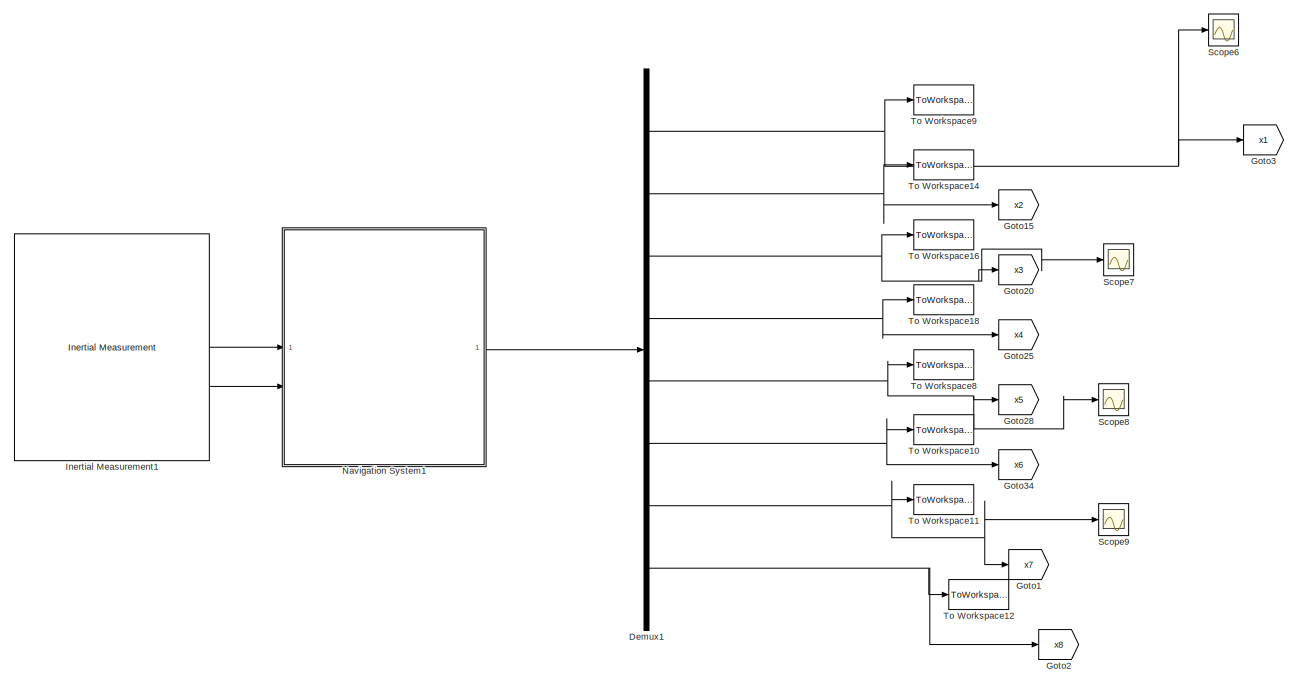
[diagram: root canvas - part 1/9, top left region]
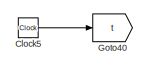
[diagram: root canvas - part 2/9, top center region]
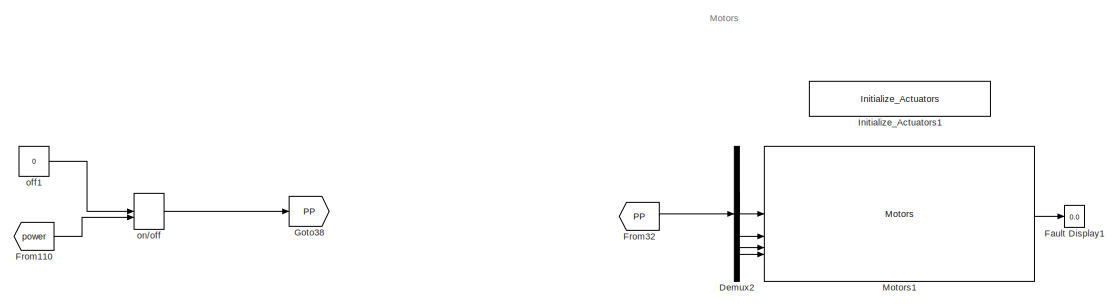
[diagram: root canvas - part 3/9, top right region]
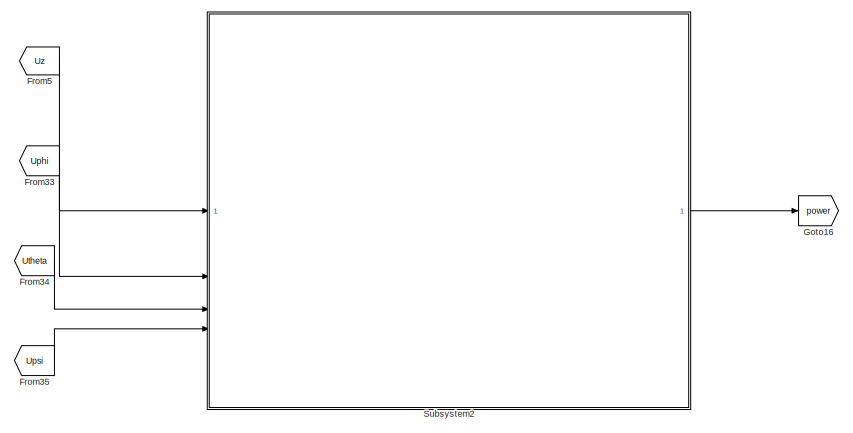
[diagram: root canvas - part 4/9, top center region]
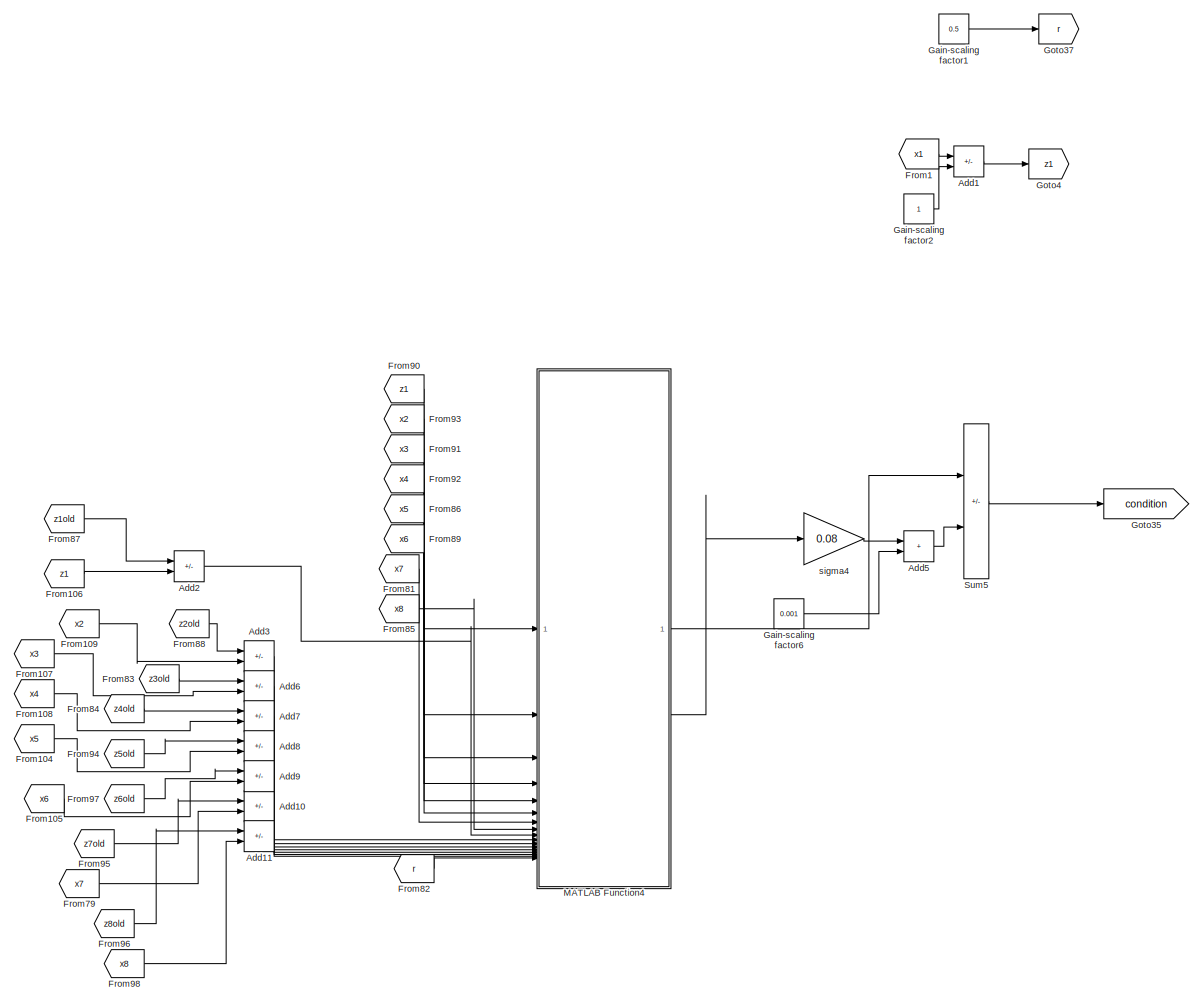
[diagram: root canvas - part 5/9, middle left region]
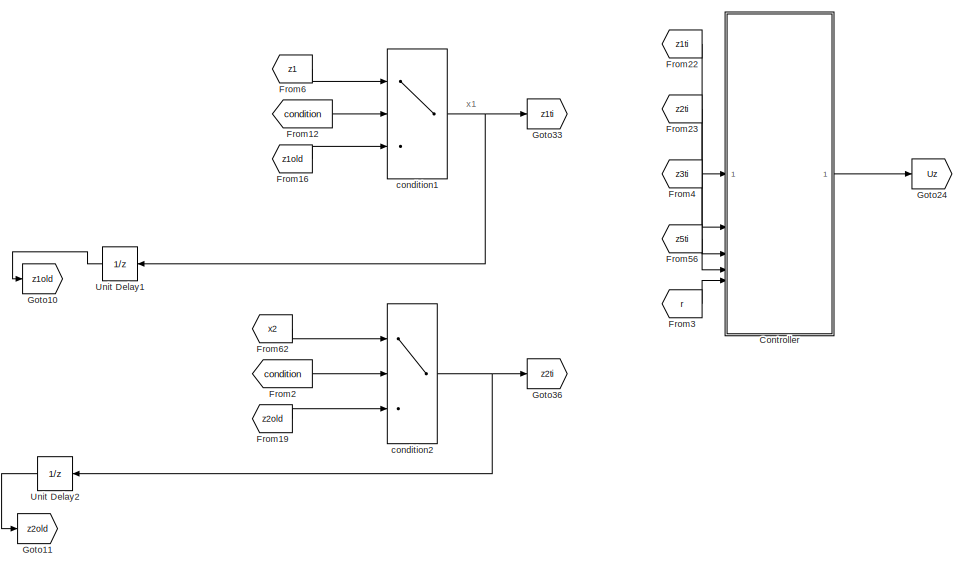
[diagram: root canvas - part 6/9, central region]
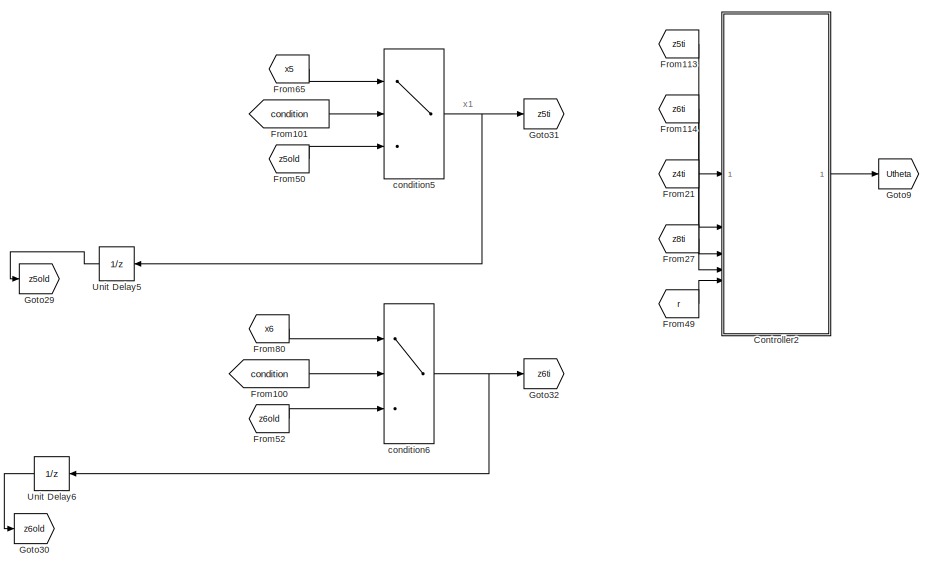
[diagram: root canvas - part 7/9, middle right region]
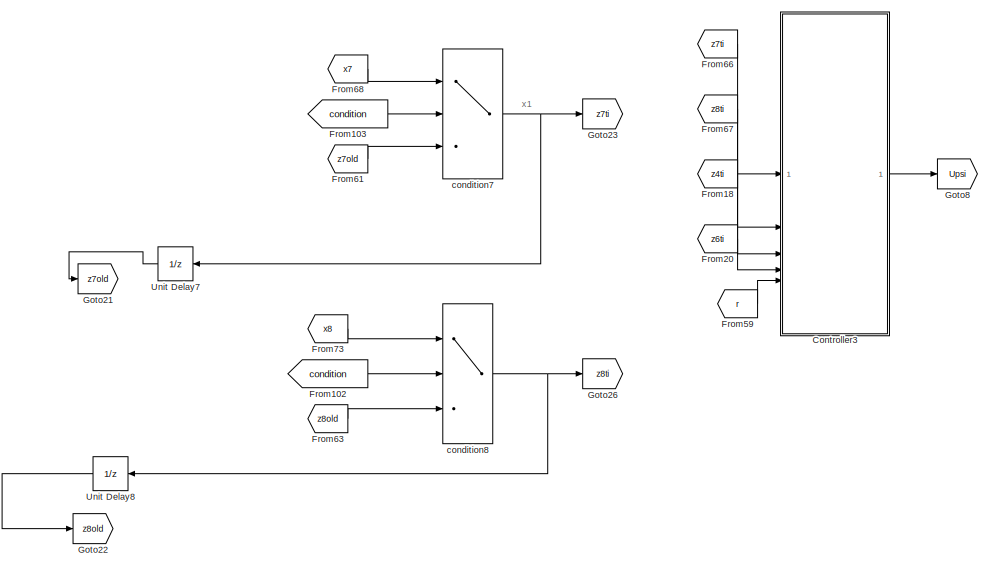
[diagram: root canvas - part 8/9, bottom right region]
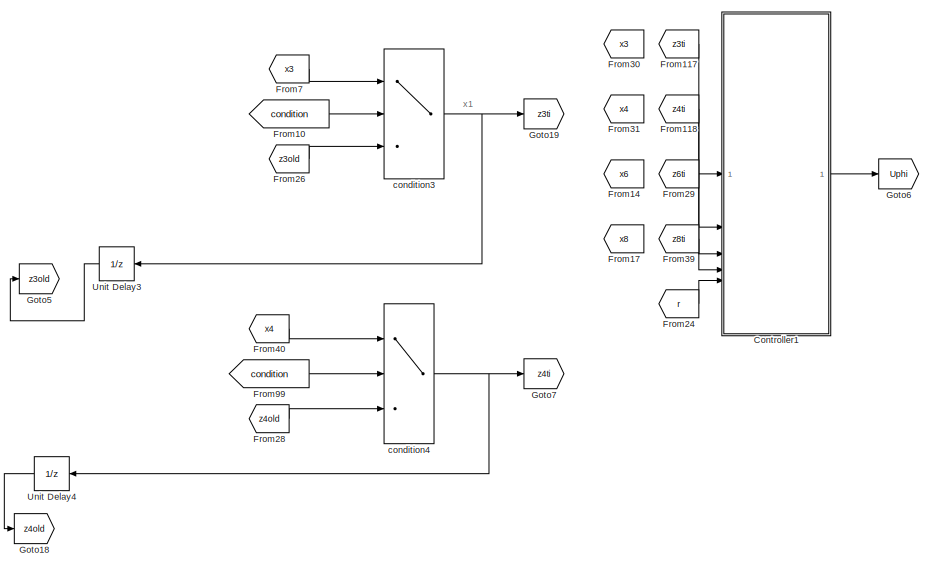
[diagram: root canvas - part 9/9, bottom center region]
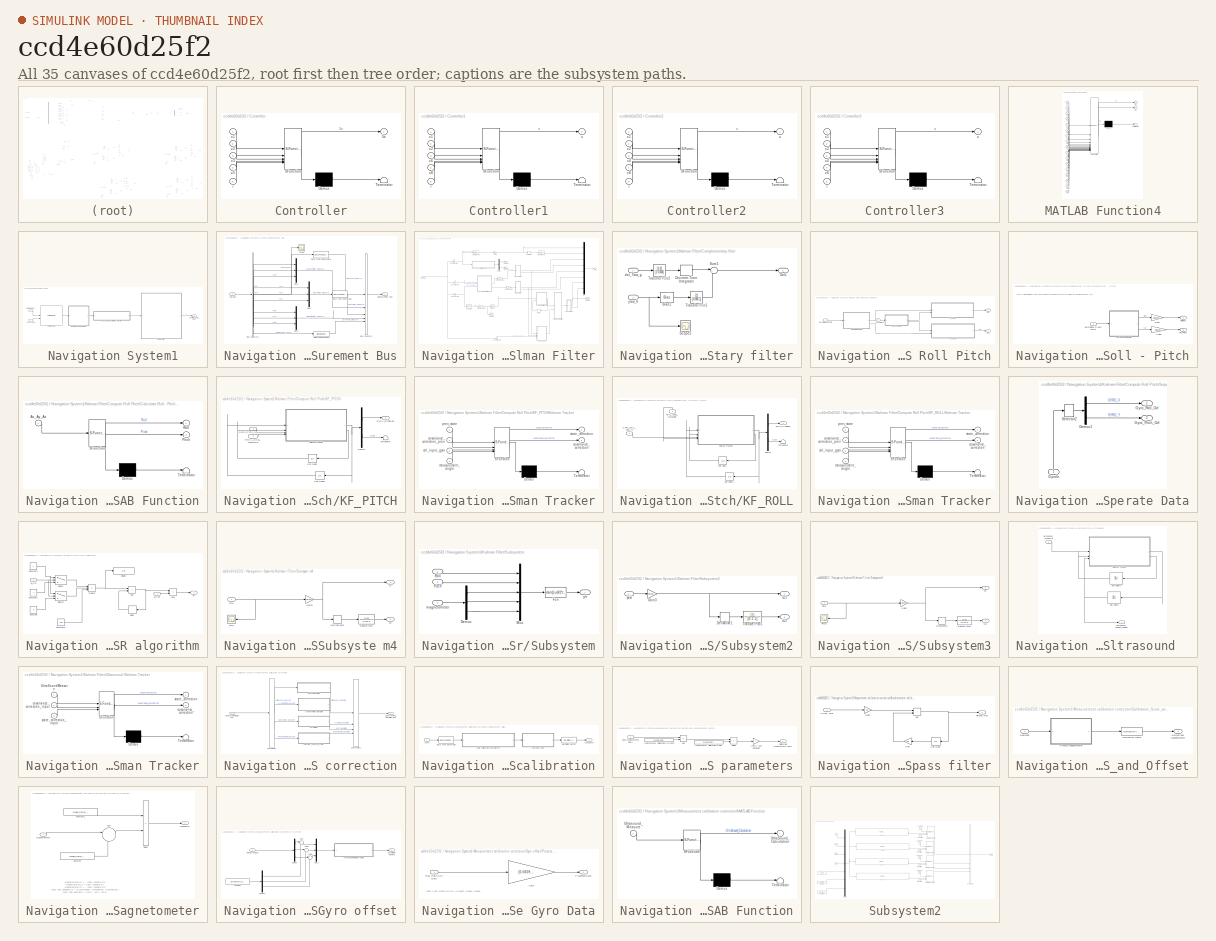
[diagram: thumbnail index - all 35 canvases of the model, root first then tree order]
MODEL slx_ccd4e60d25f2
KIND model
BLOCK [Sum] Add1
  IconShape = rectangular
  Inputs = +-
BLOCK [Sum] Add10
  IconShape = rectangular
  Inputs = +-
BLOCK [Sum] Add11
  IconShape = rectangular
  Inputs = +-
BLOCK [Sum] Add2
  IconShape = rectangular
  Inputs = +-
BLOCK [Sum] Add3
  IconShape = rectangular
  Inputs = +-
BLOCK [Sum] Add5
  IconShape = rectangular
BLOCK [Sum] Add6
  IconShape = rectangular
  Inputs = +-
BLOCK [Sum] Add7
  IconShape = rectangular
  Inputs = +-
BLOCK [Sum] Add8
  IconShape = rectangular
  Inputs = +-
BLOCK [Sum] Add9
  IconShape = rectangular
  Inputs = +-
BLOCK [Clock] Clock5
BLOCK [SubSystem] Controller
  ErrorFcn = Stateflow.Translate.translate
  PermitHierarchicalResolution = ExplicitOnly
  SFBlockType = MATLAB Function
  TreatAsAtomicUnit = on
BLOCK [Demux] Controller/ Demux 
  Outputs = 1
BLOCK [S-Function] Controller/ SFunction 
  EnableBusSupport = off
  FunctionName = sf_sfun
  PortCounts = [5 2]
  SFcnIsStateOwnerBlock = off
  SFunctionDeploymentMode = off
  Tag = Stateflow S-Function 14
BLOCK [Terminator] Controller/ Terminator 
BLOCK [Outport] Controller/Uz
BLOCK [Inport] Controller/r
  Port = 5
BLOCK [Inport] Controller/x1
BLOCK [Inport] Controller/x2
  Port = 2
BLOCK [Inport] Controller/x3
  Port = 3
BLOCK [Inport] Controller/x5
  Port = 4
BLOCK [SubSystem] Controller1
  ErrorFcn = Stateflow.Translate.translate
  PermitHierarchicalResolution = ExplicitOnly
  SFBlockType = MATLAB Function
  TreatAsAtomicUnit = on
BLOCK [Demux] Controller1/ Demux 
  Outputs = 1
BLOCK [S-Function] Controller1/ SFunction 
  EnableBusSupport = off
  FunctionName = sf_sfun
  PortCounts = [5 2]
  SFcnIsStateOwnerBlock = off
  SFunctionDeploymentMode = off
  Tag = Stateflow S-Function 1
BLOCK [Terminator] Controller1/ Terminator 
BLOCK [Inport] Controller1/r
  Port = 5
BLOCK [Outport] Controller1/u
BLOCK [Inport] Controller1/x1
BLOCK [Inport] Controller1/x2
  Port = 2
BLOCK [Inport] Controller1/x6
  Port = 3
BLOCK [Inport] Controller1/x8
  Port = 4
BLOCK [SubSystem] Controller2
  ErrorFcn = Stateflow.Translate.translate
  PermitHierarchicalResolution = ExplicitOnly
  SFBlockType = MATLAB Function
  TreatAsAtomicUnit = on
BLOCK [Demux] Controller2/ Demux 
  Outputs = 1
BLOCK [S-Function] Controller2/ SFunction 
  EnableBusSupport = off
  FunctionName = sf_sfun
  PortCounts = [5 2]
  SFcnIsStateOwnerBlock = off
  SFunctionDeploymentMode = off
  Tag = Stateflow S-Function 2
BLOCK [Terminator] Controller2/ Terminator 
BLOCK [Inport] Controller2/r
  Port = 5
BLOCK [Outport] Controller2/u
BLOCK [Inport] Controller2/x1
BLOCK [Inport] Controller2/x2
  Port = 2
BLOCK [Inport] Controller2/x4
  Port = 3
BLOCK [Inport] Controller2/x8
  Port = 4
BLOCK [SubSystem] Controller3
  ErrorFcn = Stateflow.Translate.translate
  PermitHierarchicalResolution = ExplicitOnly
  SFBlockType = MATLAB Function
  TreatAsAtomicUnit = on
BLOCK [Demux] Controller3/ Demux 
  Outputs = 1
BLOCK [S-Function] Controller3/ SFunction 
  EnableBusSupport = off
  FunctionName = sf_sfun
  PortCounts = [5 2]
  SFcnIsStateOwnerBlock = off
  SFunctionDeploymentMode = off
  Tag = Stateflow S-Function 8
BLOCK [Terminator] Controller3/ Terminator 
BLOCK [Inport] Controller3/r
  Port = 5
BLOCK [Outport] Controller3/u
BLOCK [Inport] Controller3/x1
BLOCK [Inport] Controller3/x2
  Port = 2
BLOCK [Inport] Controller3/x4
  Port = 3
BLOCK [Inport] Controller3/x6
  Port = 4
BLOCK [Demux] Demux1
  Outputs = 8
BLOCK [Demux] Demux2
BLOCK [Display] Fault Display1
  Decimation = 1
BLOCK [From] From1
  GotoTag = x1
BLOCK [From] From10
  GotoTag = condition
BLOCK [From] From100
  GotoTag = condition
BLOCK [From] From101
  GotoTag = condition
BLOCK [From] From102
  GotoTag = condition
BLOCK [From] From103
  GotoTag = condition
BLOCK [From] From104
  GotoTag = x5
BLOCK [From] From105
  GotoTag = x6
BLOCK [From] From106
  GotoTag = z1
BLOCK [From] From107
  GotoTag = x3
BLOCK [From] From108
  GotoTag = x4
BLOCK [From] From109
  GotoTag = x2
BLOCK [From] From110
  GotoTag = power
BLOCK [From] From113
  GotoTag = z5ti
BLOCK [From] From114
  GotoTag = z6ti
BLOCK [From] From117
  GotoTag = z3ti
BLOCK [From] From118
  GotoTag = z4ti
BLOCK [From] From12
  GotoTag = condition
BLOCK [From] From14
  GotoTag = x6
BLOCK [From] From16
  GotoTag = z1old
BLOCK [From] From17
  GotoTag = x8
BLOCK [From] From18
  GotoTag = z4ti
BLOCK [From] From19
  GotoTag = z2old
BLOCK [From] From2
  GotoTag = condition
BLOCK [From] From20
  GotoTag = z6ti
BLOCK [From] From21
  GotoTag = z4ti
BLOCK [From] From22
  GotoTag = z1ti
BLOCK [From] From23
  GotoTag = z2ti
BLOCK [From] From24
  GotoTag = r
BLOCK [From] From26
  GotoTag = z3old
BLOCK [From] From27
  GotoTag = z8ti
BLOCK [From] From28
  GotoTag = z4old
BLOCK [From] From29
  GotoTag = z6ti
BLOCK [From] From3
  GotoTag = r
BLOCK [From] From30
  GotoTag = x3
BLOCK [From] From31
  GotoTag = x4
BLOCK [From] From32
  GotoTag = PP
BLOCK [From] From33
  GotoTag = Uphi
BLOCK [From] From34
  GotoTag = Utheta
BLOCK [From] From35
  GotoTag = Upsi
BLOCK [From] From39
  GotoTag = z8ti
BLOCK [From] From4
  GotoTag = z3ti
BLOCK [From] From40
  GotoTag = x4
BLOCK [From] From49
  GotoTag = r
BLOCK [From] From5
  GotoTag = Uz
BLOCK [From] From50
  GotoTag = z5old
BLOCK [From] From52
  GotoTag = z6old
BLOCK [From] From56
  GotoTag = z5ti
BLOCK [From] From59
  GotoTag = r
BLOCK [From] From6
  GotoTag = z1
BLOCK [From] From61
  GotoTag = z7old
BLOCK [From] From62
  GotoTag = x2
BLOCK [From] From63
  GotoTag = z8old
BLOCK [From] From65
  GotoTag = x5
BLOCK [From] From66
  GotoTag = z7ti
BLOCK [From] From67
  GotoTag = z8ti
BLOCK [From] From68
  GotoTag = x7
BLOCK [From] From7
  GotoTag = x3
BLOCK [From] From73
  GotoTag = x8
BLOCK [From] From79
  GotoTag = x7
BLOCK [From] From80
  GotoTag = x6
BLOCK [From] From81
  GotoTag = x7
BLOCK [From] From82
  GotoTag = r
BLOCK [From] From83
  GotoTag = z3old
BLOCK [From] From84
  GotoTag = z4old
BLOCK [From] From85
  GotoTag = x8
BLOCK [From] From86
  GotoTag = x5
BLOCK [From] From87
  GotoTag = z1old
BLOCK [From] From88
  GotoTag = z2old
BLOCK [From] From89
  GotoTag = x6
BLOCK [From] From90
  GotoTag = z1
BLOCK [From] From91
  GotoTag = x3
BLOCK [From] From92
  GotoTag = x4
BLOCK [From] From93
  GotoTag = x2
BLOCK [From] From94
  GotoTag = z5old
BLOCK [From] From95
  GotoTag = z7old
BLOCK [From] From96
  GotoTag = z8old
  NameLocation = top
BLOCK [From] From97
  GotoTag = z6old
BLOCK [From] From98
  GotoTag = x8
BLOCK [From] From99
  GotoTag = condition
BLOCK [Constant] Gain-scaling factor1
  Value = 0.5
BLOCK [Constant] Gain-scaling factor2
BLOCK [Constant] Gain-scaling factor6
  Value = 0.001
BLOCK [Goto] Goto1
  GotoTag = x7
BLOCK [Goto] Goto10
  GotoTag = z1old
BLOCK [Goto] Goto11
  GotoTag = z2old
BLOCK [Goto] Goto15
  GotoTag = x2
BLOCK [Goto] Goto16
  GotoTag = power
BLOCK [Goto] Goto18
  GotoTag = z4old
BLOCK [Goto] Goto19
  GotoTag = z3ti
BLOCK [Goto] Goto2
  GotoTag = x8
BLOCK [Goto] Goto20
  GotoTag = x3
BLOCK [Goto] Goto21
  GotoTag = z7old
BLOCK [Goto] Goto22
  GotoTag = z8old
BLOCK [Goto] Goto23
  GotoTag = z7ti
BLOCK [Goto] Goto24
  GotoTag = Uz
BLOCK [Goto] Goto25
  GotoTag = x4
BLOCK [Goto] Goto26
  GotoTag = z8ti
BLOCK [Goto] Goto28
  GotoTag = x5
BLOCK [Goto] Goto29
  GotoTag = z5old
BLOCK [Goto] Goto3
  GotoTag = x1
BLOCK [Goto] Goto30
  GotoTag = z6old
BLOCK [Goto] Goto31
  GotoTag = z5ti
BLOCK [Goto] Goto32
  GotoTag = z6ti
BLOCK [Goto] Goto33
  GotoTag = z1ti
BLOCK [Goto] Goto34
  GotoTag = x6
BLOCK [Goto] Goto35
  GotoTag = condition
BLOCK [Goto] Goto36
  GotoTag = z2ti
BLOCK [Goto] Goto37
  GotoTag = r
BLOCK [Goto] Goto38
  GotoTag = PP
BLOCK [Goto] Goto4
  GotoTag = z1
BLOCK [Goto] Goto40
  GotoTag = t
BLOCK [Goto] Goto5
  GotoTag = z3old
BLOCK [Goto] Goto6
  GotoTag = Uphi
BLOCK [Goto] Goto7
  GotoTag = z4ti
BLOCK [Goto] Goto8
  GotoTag = Upsi
BLOCK [Goto] Goto9
  GotoTag = Utheta
BLOCK [Reference] Inertial Measurement1  REF=AR_Drone_Sensors/Inertial Measurement
  SourceBlock = AR_Drone_Sensors/Inertial Measurement
BLOCK [Reference] Initialize_Actuators1  REF=AR_Drone_Actuators/Initialize_Actuators
  SourceBlock = AR_Drone_Actuators/Initialize_Actuators
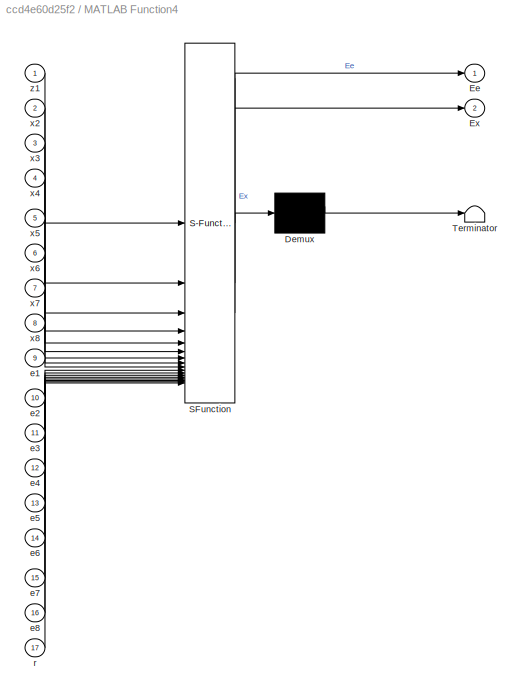
BLOCK [SubSystem] MATLAB Function4
  ErrorFcn = Stateflow.Translate.translate
  PermitHierarchicalResolution = ExplicitOnly
  SFBlockType = MATLAB Function
  TreatAsAtomicUnit = on
BLOCK [Demux] MATLAB Function4/ Demux 
  Outputs = 1
BLOCK [S-Function] MATLAB Function4/ SFunction 
  EnableBusSupport = off
  FunctionName = sf_sfun
  PortCounts = [17 3]
  SFcnIsStateOwnerBlock = off
  SFunctionDeploymentMode = off
  Tag = Stateflow S-Function 9
BLOCK [Terminator] MATLAB Function4/ Terminator 
BLOCK [Outport] MATLAB Function4/Ee
BLOCK [Outport] MATLAB Function4/Ex
  Port = 2
BLOCK [Inport] MATLAB Function4/e1
  Port = 9
BLOCK [Inport] MATLAB Function4/e2
  Port = 10
BLOCK [Inport] MATLAB Function4/e3
  Port = 11
BLOCK [Inport] MATLAB Function4/e4
  Port = 12
BLOCK [Inport] MATLAB Function4/e5
  Port = 13
BLOCK [Inport] MATLAB Function4/e6
  Port = 14
BLOCK [Inport] MATLAB Function4/e7
  Port = 15
BLOCK [Inport] MATLAB Function4/e8
  Port = 16
BLOCK [Inport] MATLAB Function4/r
  Port = 17
BLOCK [Inport] MATLAB Function4/x2
  Port = 2
BLOCK [Inport] MATLAB Function4/x3
  Port = 3
BLOCK [Inport] MATLAB Function4/x4
  Port = 4
BLOCK [Inport] MATLAB Function4/x5
  Port = 5
BLOCK [Inport] MATLAB Function4/x6
  Port = 6
BLOCK [Inport] MATLAB Function4/x7
  Port = 7
BLOCK [Inport] MATLAB Function4/x8
  Port = 8
BLOCK [Inport] MATLAB Function4/z1
BLOCK [Reference] Motors1  REF=AR_Drone_Actuators/Motors
  SourceBlock = AR_Drone_Actuators/Motors
BLOCK [SubSystem] Navigation System1
  AncestorBlock = AR_Drone_Positioning/Navigation System
BLOCK [Inport] Navigation System1/CheckSum
  Port = 2
BLOCK [Outport] Navigation System1/Controller_Data_Bus
BLOCK [SubSystem] Navigation System1/Create Measurement Bus
BLOCK [BusCreator] Navigation System1/Create Measurement Bus/Bus Creator2
  DisplayOption = bar
  InheritFromInputs = on
  Inputs = 5
BLOCK [BusSelector] Navigation System1/Create Measurement Bus/Bus Selector1
  OutputSignals = ultrasound,ax,ay,az,vx,vy,vz,mx,my,mz,temperature_gyro
BLOCK [DataTypeConversion] Navigation System1/Create Measurement Bus/Data Type Conversion
  OutDataTypeStr = double
  RndMeth = Floor
  SaturateOnIntegerOverflow = off
BLOCK [DataTypeConversion] Navigation System1/Create Measurement Bus/Data Type Conversion1
  OutDataTypeStr = double
  RndMeth = Floor
  SaturateOnIntegerOverflow = off
BLOCK [Inport] Navigation System1/Create Measurement Bus/IMU Bus
BLOCK [Outport] Navigation System1/Create Measurement Bus/Measurement Bus
BLOCK [Mux] Navigation System1/Create Measurement Bus/Mux1
  DisplayOption = bar
  Inputs = 3
BLOCK [Mux] Navigation System1/Create Measurement Bus/Mux2
  DisplayOption = bar
  Inputs = 3
BLOCK [Mux] Navigation System1/Create Measurement Bus/Mux3
  DisplayOption = bar
  Inputs = 3
BLOCK [Scope] Navigation System1/Create Measurement Bus/Scope
  Floating = off
  NumInputPorts = 1
  ScopeSpecificationString = Simulink.scopes.TimeScopeBlockCfg('CurrentConfiguration', extmgr.ConfigurationSet(extmgr.Configuration('Core','General UI',true),extmgr.Configuration('Core','Source UI',true),extmgr.Configuration('Sources','WiredSimulink',true,'DataLoggingVariableName','ScopeData3'),extmgr.Configuration('Visuals','Time Domain',true,'SerializedDisplays',{struct('MinYLimReal','-5320.75','MaxYLimReal','47886.75','YLa...<+1437ch>
BLOCK [SignalSpecification] Navigation System1/Create Measurement Bus/Signal Specification1
BLOCK [Inport] Navigation System1/IMU Data Bus
  OutDataTypeStr = Bus: IMU_Packets
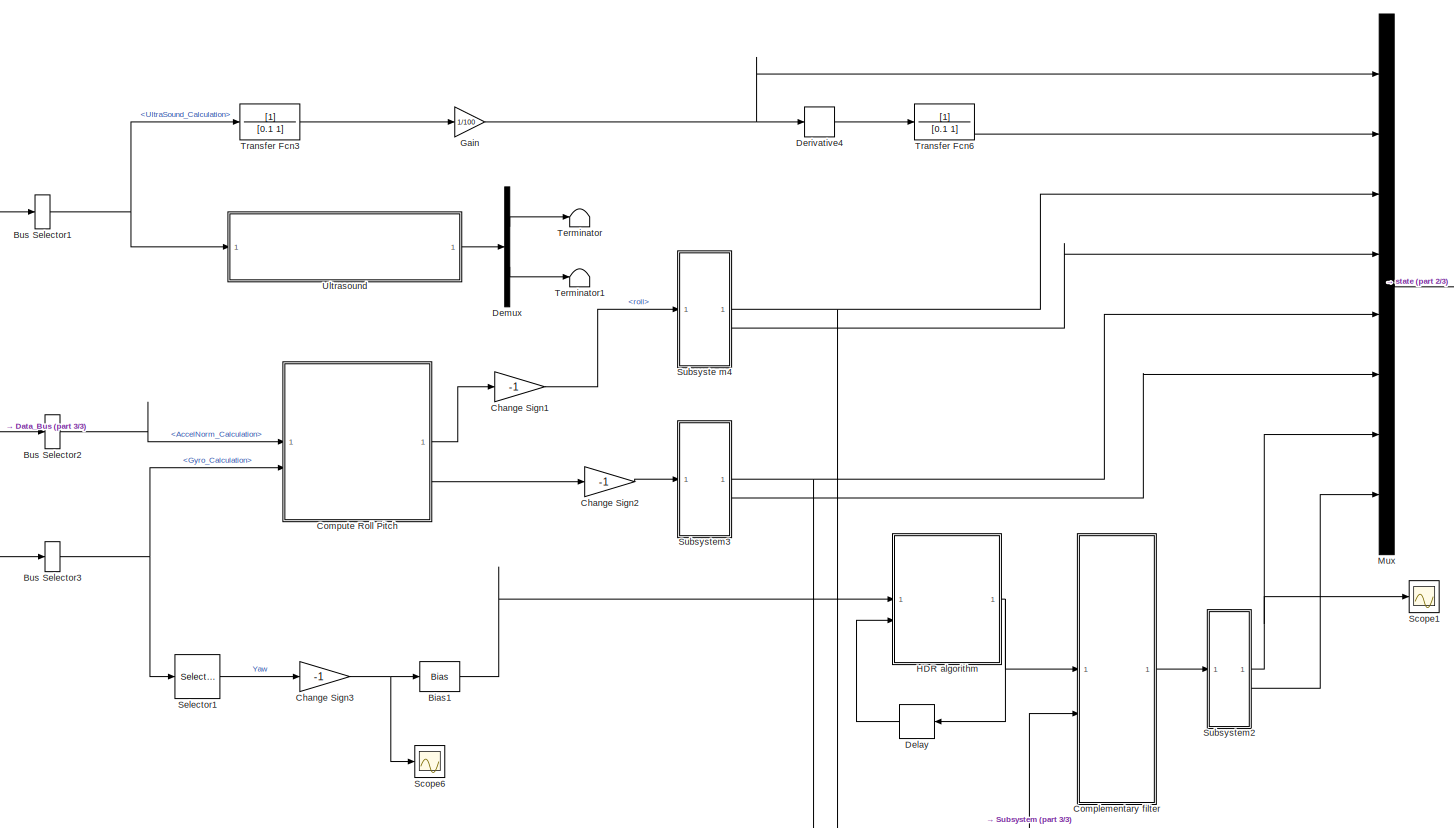
[diagram: Navigation System1/Kalman Filter - part 1/3, most of the canvas]
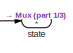
[diagram: Navigation System1/Kalman Filter - part 2/3, top right region]
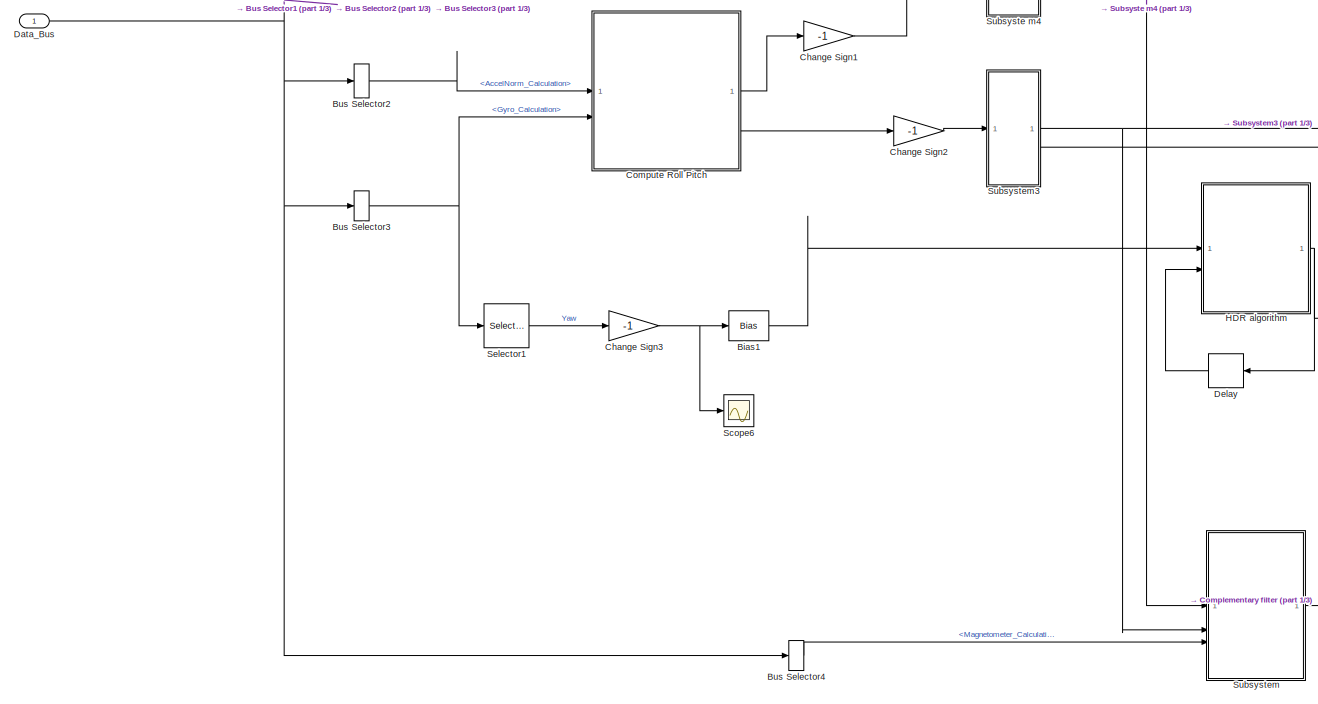
[diagram: Navigation System1/Kalman Filter - part 3/3, bottom center region]
BLOCK [SubSystem] Navigation System1/Kalman Filter
BLOCK [Bias] Navigation System1/Kalman Filter/Bias1
  Bias = -1.25
  SaturateOnIntegerOverflow = off
BLOCK [BusSelector] Navigation System1/Kalman Filter/Bus Selector1
  OutputSignals = UltraSound_Calculation
BLOCK [BusSelector] Navigation System1/Kalman Filter/Bus Selector2
  OutputSignals = AccelNorm_Calculation
BLOCK [BusSelector] Navigation System1/Kalman Filter/Bus Selector3
  OutputSignals = Gyro_Calculation
BLOCK [BusSelector] Navigation System1/Kalman Filter/Bus Selector4
  OutputSignals = Magnetometer_Calculation
BLOCK [Gain] Navigation System1/Kalman Filter/Change Sign1
  Gain = -1
BLOCK [Gain] Navigation System1/Kalman Filter/Change Sign2
  Gain = -1
BLOCK [Gain] Navigation System1/Kalman Filter/Change Sign3
  Gain = -1
BLOCK [SubSystem] Navigation System1/Kalman Filter/Complementary filter
BLOCK [Bias] Navigation System1/Kalman Filter/Complementary filter/Bias1
  Bias = -0.14
  SaturateOnIntegerOverflow = off
BLOCK [DiscreteIntegrator] Navigation System1/Kalman Filter/Complementary filter/Discrete-Time Integrator
  ICPrevOutput = DiscIntNeverNeededParam
  ICPrevScaledInput = DiscIntNeverNeededParam
  InitialConditionSetting = Auto
  SampleTime = 0.0025
BLOCK [Outport] Navigation System1/Kalman Filter/Complementary filter/Out1
BLOCK [Scope] Navigation System1/Kalman Filter/Complementary filter/Scope2
  Floating = off
  NameLocation = top
  NumInputPorts = 1
  ScopeSpecificationString = Simulink.scopes.TimeScopeBlockCfg('CurrentConfiguration', extmgr.ConfigurationSet(extmgr.Configuration('Core','General UI',true),extmgr.Configuration('Core','Source UI',true),extmgr.Configuration('Sources','WiredSimulink',true,'DataLoggingVariableName','ScopeData3'),extmgr.Configuration('Visuals','Time Domain',true,'SerializedDisplays',{struct('MinYLimReal','0.1390836658272308','MaxYLimReal','0.13...<+1554ch>
BLOCK [Sum] Navigation System1/Kalman Filter/Complementary filter/Sum1
  Inputs = |++
BLOCK [TransferFcn] Navigation System1/Kalman Filter/Complementary filter/Transfer Fcn1
  Denominator = [0.005 1]
BLOCK [TransferFcn] Navigation System1/Kalman Filter/Complementary filter/Transfer Fcn2
  Denominator = [1 0.005]
  Numerator = [1 0]
BLOCK [Inport] Navigation System1/Kalman Filter/Complementary filter/dot_Yaw_g
BLOCK [Inport] Navigation System1/Kalman Filter/Complementary filter/yaw_h
  Port = 2
BLOCK [SubSystem] Navigation System1/Kalman Filter/Compute Roll Pitch
BLOCK [SubSystem] Navigation System1/Kalman Filter/Compute Roll Pitch/Calculate Roll - Pitch
BLOCK [Gain] Navigation System1/Kalman Filter/Compute Roll Pitch/Calculate Roll - Pitch/Gain4
  Gain = 180/pi
BLOCK [Gain] Navigation System1/Kalman Filter/Compute Roll Pitch/Calculate Roll - Pitch/Gain5
  Gain = -180/pi
BLOCK [SubSystem] Navigation System1/Kalman Filter/Compute Roll Pitch/Calculate Roll - Pitch/MATLAB Function
  ErrorFcn = Stateflow.Translate.translate
  PermitHierarchicalResolution = ExplicitOnly
  SFBlockType = MATLAB Function
  TreatAsAtomicUnit = on
BLOCK [Demux] Navigation System1/Kalman Filter/Compute Roll Pitch/Calculate Roll - Pitch/MATLAB Function/ Demux 
  Outputs = 1
BLOCK [S-Function] Navigation System1/Kalman Filter/Compute Roll Pitch/Calculate Roll - Pitch/MATLAB Function/ SFunction 
  EnableBusSupport = off
  FunctionName = sf_sfun
  PortCounts = [1 3]
  SFcnIsStateOwnerBlock = off
  SFunctionDeploymentMode = off
  Tag = Stateflow S-Function 3
BLOCK [Terminator] Navigation System1/Kalman Filter/Compute Roll Pitch/Calculate Roll - Pitch/MATLAB Function/ Terminator 
BLOCK [Inport] Navigation System1/Kalman Filter/Compute Roll Pitch/Calculate Roll - Pitch/MATLAB Function/Ax_Ay_Az
BLOCK [Outport] Navigation System1/Kalman Filter/Compute Roll Pitch/Calculate Roll - Pitch/MATLAB Function/Pitch
  Port = 2
BLOCK [Outport] Navigation System1/Kalman Filter/Compute Roll Pitch/Calculate Roll - Pitch/MATLAB Function/Roll
BLOCK [Inport] Navigation System1/Kalman Filter/Compute Roll Pitch/Calculate Roll - Pitch/Normalized Gravity Vector
BLOCK [Outport] Navigation System1/Kalman Filter/Compute Roll Pitch/Calculate Roll - Pitch/PitchRaw
  Port = 2
BLOCK [Outport] Navigation System1/Kalman Filter/Compute Roll Pitch/Calculate Roll - Pitch/RollRaw
BLOCK [Inport] Navigation System1/Kalman Filter/Compute Roll Pitch/Gyro input
  Port = 2
BLOCK [SubSystem] Navigation System1/Kalman Filter/Compute Roll Pitch/KF_PITCH
BLOCK [Demux] Navigation System1/Kalman Filter/Compute Roll Pitch/KF_PITCH/Demux
  Outputs = 2
BLOCK [Inport] Navigation System1/Kalman Filter/Compute Roll Pitch/KF_PITCH/GYRO_CTRL_IN
BLOCK [SubSystem] Navigation System1/Kalman Filter/Compute Roll Pitch/KF_PITCH/Kalman Tracker
  ErrorFcn = Stateflow.Translate.translate
  PermitHierarchicalResolution = ExplicitOnly
  SFBlockType = MATLAB Function
  TreatAsAtomicUnit = on
BLOCK [Demux] Navigation System1/Kalman Filter/Compute Roll Pitch/KF_PITCH/Kalman Tracker/ Demux 
  Outputs = 1
BLOCK [S-Function] Navigation System1/Kalman Filter/Compute Roll Pitch/KF_PITCH/Kalman Tracker/ SFunction 
  EnableBusSupport = off
  FunctionName = sf_sfun
  PortCounts = [4 3]
  SFcnIsStateOwnerBlock = off
  SFunctionDeploymentMode = off
  Tag = Stateflow S-Function 4
BLOCK [Terminator] Navigation System1/Kalman Filter/Compute Roll Pitch/KF_PITCH/Kalman Tracker/ Terminator 
BLOCK [Outport] Navigation System1/Kalman Filter/Compute Roll Pitch/KF_PITCH/Kalman Tracker/covariance_correction
  Port = 2
BLOCK [Inport] Navigation System1/Kalman Filter/Compute Roll Pitch/KF_PITCH/Kalman Tracker/covariance_correction_prev
  Port = 2
BLOCK [Inport] Navigation System1/Kalman Filter/Compute Roll Pitch/KF_PITCH/Kalman Tracker/ctrl_input_gyro
  Port = 3
BLOCK [Inport] Navigation System1/Kalman Filter/Compute Roll Pitch/KF_PITCH/Kalman Tracker/measurement_angle
  Port = 4
BLOCK [Inport] Navigation System1/Kalman Filter/Compute Roll Pitch/KF_PITCH/Kalman Tracker/prev_state
BLOCK [Outport] Navigation System1/Kalman Filter/Compute Roll Pitch/KF_PITCH/Kalman Tracker/state_correction
BLOCK [Inport] Navigation System1/Kalman Filter/Compute Roll Pitch/KF_PITCH/PITCH_ACCEL_MEASURE
  Port = 2
BLOCK [Outport] Navigation System1/Kalman Filter/Compute Roll Pitch/KF_PITCH/PITCH_FILTERED
BLOCK [Terminator] Navigation System1/Kalman Filter/Compute Roll Pitch/KF_PITCH/Terminator
BLOCK [UnitDelay] Navigation System1/Kalman Filter/Compute Roll Pitch/KF_PITCH/Unit Delay
  HasFrameUpgradeWarning = on
  InitialCondition = eye(2)
  NameLocation = top
  SampleTime = -1
BLOCK [UnitDelay] Navigation System1/Kalman Filter/Compute Roll Pitch/KF_PITCH/Unit Delay1
  HasFrameUpgradeWarning = on
  InitialCondition = [0 0]'
  NameLocation = top
  SampleTime = -1
BLOCK [SubSystem] Navigation System1/Kalman Filter/Compute Roll Pitch/KF_ROLL
BLOCK [Demux] Navigation System1/Kalman Filter/Compute Roll Pitch/KF_ROLL/Demux
  Outputs = 2
BLOCK [Inport] Navigation System1/Kalman Filter/Compute Roll Pitch/KF_ROLL/GYRO_ROLL_CTRL_IN
  Port = 2
BLOCK [SubSystem] Navigation System1/Kalman Filter/Compute Roll Pitch/KF_ROLL/Kalman Tracker
  ErrorFcn = Stateflow.Translate.translate
  PermitHierarchicalResolution = ExplicitOnly
  SFBlockType = MATLAB Function
  TreatAsAtomicUnit = on
BLOCK [Demux] Navigation System1/Kalman Filter/Compute Roll Pitch/KF_ROLL/Kalman Tracker/ Demux 
  Outputs = 1
BLOCK [S-Function] Navigation System1/Kalman Filter/Compute Roll Pitch/KF_ROLL/Kalman Tracker/ SFunction 
  EnableBusSupport = off
  FunctionName = sf_sfun
  PortCounts = [4 3]
  SFcnIsStateOwnerBlock = off
  SFunctionDeploymentMode = off
  Tag = Stateflow S-Function 5
BLOCK [Terminator] Navigation System1/Kalman Filter/Compute Roll Pitch/KF_ROLL/Kalman Tracker/ Terminator 
BLOCK [Outport] Navigation System1/Kalman Filter/Compute Roll Pitch/KF_ROLL/Kalman Tracker/covariance_correction
  Port = 2
BLOCK [Inport] Navigation System1/Kalman Filter/Compute Roll Pitch/KF_ROLL/Kalman Tracker/covariance_correction_prev
  Port = 2
BLOCK [Inport] Navigation System1/Kalman Filter/Compute Roll Pitch/KF_ROLL/Kalman Tracker/ctrl_input_gyro
  Port = 3
BLOCK [Inport] Navigation System1/Kalman Filter/Compute Roll Pitch/KF_ROLL/Kalman Tracker/measurement_angle
  Port = 4
BLOCK [Inport] Navigation System1/Kalman Filter/Compute Roll Pitch/KF_ROLL/Kalman Tracker/prev_state
BLOCK [Outport] Navigation System1/Kalman Filter/Compute Roll Pitch/KF_ROLL/Kalman Tracker/state_correction
BLOCK [Inport] Navigation System1/Kalman Filter/Compute Roll Pitch/KF_ROLL/ROLL_ACCEL_MEASURE
  NameLocation = right
BLOCK [Outport] Navigation System1/Kalman Filter/Compute Roll Pitch/KF_ROLL/ROLL_FILTERED
BLOCK [Terminator] Navigation System1/Kalman Filter/Compute Roll Pitch/KF_ROLL/Terminator
BLOCK [UnitDelay] Navigation System1/Kalman Filter/Compute Roll Pitch/KF_ROLL/Unit Delay
  HasFrameUpgradeWarning = on
  InitialCondition = eye(2)
  NameLocation = top
  SampleTime = -1
BLOCK [UnitDelay] Navigation System1/Kalman Filter/Compute Roll Pitch/KF_ROLL/Unit Delay1
  HasFrameUpgradeWarning = on
  InitialCondition = [0 0]'
  NameLocation = top
  SampleTime = -1
BLOCK [Inport] Navigation System1/Kalman Filter/Compute Roll Pitch/Normalized Gravity
BLOCK [Outport] Navigation System1/Kalman Filter/Compute Roll Pitch/Pitch
  Port = 2
BLOCK [Outport] Navigation System1/Kalman Filter/Compute Roll Pitch/Roll
BLOCK [SubSystem] Navigation System1/Kalman Filter/Compute Roll Pitch/Seperate Data
BLOCK [Demux] Navigation System1/Kalman Filter/Compute Roll Pitch/Seperate Data/Demux1
  Outputs = [1 1]
BLOCK [Inport] Navigation System1/Kalman Filter/Compute Roll Pitch/Seperate Data/GyroIn
  NameLocation = right
BLOCK [Outport] Navigation System1/Kalman Filter/Compute Roll Pitch/Seperate Data/Gyro_Pitch_Ctrl
  Port = 2
BLOCK [Outport] Navigation System1/Kalman Filter/Compute Roll Pitch/Seperate Data/Gyro_Roll_Ctrl
BLOCK [Selector] Navigation System1/Kalman Filter/Compute Roll Pitch/Seperate Data/Selector2
  IndexMode = Zero-based
  IndexOptions = Index vector (dialog)
  Indices = [0 1]
  InputPortWidth = 3
  OutputSizes = 1
BLOCK [Inport] Navigation System1/Kalman Filter/Data_Bus
BLOCK [Delay] Navigation System1/Kalman Filter/Delay
  DelayLength = 1
  InitialCondition = 0
  InputPortMap = u0
BLOCK [Demux] Navigation System1/Kalman Filter/Demux
  Outputs = 2
BLOCK [Derivative] Navigation System1/Kalman Filter/Derivative4
BLOCK [Gain] Navigation System1/Kalman Filter/Gain
  Gain = 1/100
BLOCK [SubSystem] Navigation System1/Kalman Filter/HDR algorithm
BLOCK [Sum] Navigation System1/Kalman Filter/HDR algorithm/Add
  IconShape = rectangular
BLOCK [Sum] Navigation System1/Kalman Filter/HDR algorithm/Add1
  IconShape = rectangular
BLOCK [Constant] Navigation System1/Kalman Filter/HDR algorithm/Constant
  Value = 0
BLOCK [Constant] Navigation System1/Kalman Filter/HDR algorithm/Constant1
BLOCK [Constant] Navigation System1/Kalman Filter/HDR algorithm/Constant2
  Value = -1
BLOCK [Constant] Navigation System1/Kalman Filter/HDR algorithm/Constant3
  Value = -0.01
BLOCK [Delay] Navigation System1/Kalman Filter/HDR algorithm/Delay
  DelayLength = 1
  InitialCondition = 0
  InputPortMap = u0
BLOCK [Display] Navigation System1/Kalman Filter/HDR algorithm/Display
  Decimation = 1
BLOCK [Product] Navigation System1/Kalman Filter/HDR algorithm/Product
  Inputs = 3
BLOCK [Switch] Navigation System1/Kalman Filter/HDR algorithm/Switch
  Criteria = u2 > Threshold
  InputSameDT = off
  SaturateOnIntegerOverflow = off
BLOCK [Switch] Navigation System1/Kalman Filter/HDR algorithm/Switch1
  Criteria = u2 ~= 0
  InputSameDT = off
  SaturateOnIntegerOverflow = off
BLOCK [Inport] Navigation System1/Kalman Filter/HDR algorithm/w_true
BLOCK [Inport] Navigation System1/Kalman Filter/HDR algorithm/w_{i-1}
  Port = 2
BLOCK [Outport] Navigation System1/Kalman Filter/HDR algorithm/wi
BLOCK [Mux] Navigation System1/Kalman Filter/Mux
  DisplayOption = bar
  Inputs = 8
BLOCK [Scope] Navigation System1/Kalman Filter/Scope1
  Floating = off
  NumInputPorts = 1
  ScopeSpecificationString = Simulink.scopes.TimeScopeBlockCfg('CurrentConfiguration', extmgr.ConfigurationSet(extmgr.Configuration('Core','General UI',true),extmgr.Configuration('Core','Source UI',true),extmgr.Configuration('Sources','WiredSimulink',true,'DataLoggingVariableName','ScopeData36'),extmgr.Configuration('Visuals','Time Domain',true,'SerializedDisplays',{struct('MinYLimReal','-0.02903','MaxYLimReal','0.00323','YLa...<+1478ch>
BLOCK [Scope] Navigation System1/Kalman Filter/Scope6
  Floating = off
  NumInputPorts = 1
  ScopeSpecificationString = Simulink.scopes.TimeScopeBlockCfg('CurrentConfiguration', extmgr.ConfigurationSet(extmgr.Configuration('Core','General UI',true),extmgr.Configuration('Core','Source UI',true),extmgr.Configuration('Sources','WiredSimulink',true,'DataLoggingVariableName','ScopeData4'),extmgr.Configuration('Visuals','Time Domain',true,'SerializedDisplays',{struct('MinYLimReal','0.98201','MaxYLimReal','1.51489','YLabe...<+1475ch>
BLOCK [Selector] Navigation System1/Kalman Filter/Selector1
  IndexMode = Zero-based
  IndexOptions = Index vector (dialog)
  Indices = [2]
  InputPortWidth = 3
  OutputSizes = 1
BLOCK [SubSystem] Navigation System1/Kalman Filter/Subsyste m4
BLOCK [Derivative] Navigation System1/Kalman Filter/Subsyste m4/Derivative13
BLOCK [Gain] Navigation System1/Kalman Filter/Subsyste m4/Gain2
  Gain = pi/180
BLOCK [Scope] Navigation System1/Kalman Filter/Subsyste m4/Roll
  Floating = off
  NameLocation = top
  NumInputPorts = 1
  ScopeSpecificationString = Simulink.scopes.TimeScopeBlockCfg('CurrentConfiguration', extmgr.ConfigurationSet(extmgr.Configuration('Core','General UI',true),extmgr.Configuration('Core','Source UI',true),extmgr.Configuration('Sources','WiredSimulink',true,'DataLoggingVariableName','ScopeData3'),extmgr.Configuration('Visuals','Time Domain',true,'SerializedDisplays',{struct('MinYLimReal','0.74044','MaxYLimReal','1.62459','YLabe...<+1472ch>
BLOCK [Inport] Navigation System1/Kalman Filter/Subsyste m4/Roll 
BLOCK [TransferFcn] Navigation System1/Kalman Filter/Subsyste m4/Transfer Fcn1
  Denominator = [0.25 1]
  Numerator = [0.5]
BLOCK [Outport] Navigation System1/Kalman Filter/Subsyste m4/x7
BLOCK [Outport] Navigation System1/Kalman Filter/Subsyste m4/x8
  Port = 2
BLOCK [SubSystem] Navigation System1/Kalman Filter/Subsystem
BLOCK [Demux] Navigation System1/Kalman Filter/Subsystem/Demux
  Outputs = 3
BLOCK [Fcn] Navigation System1/Kalman Filter/Subsystem/Fcn
  Expr = atan((-u(4)*cos(u(1))+u(5)*sin(u(1)))/(u(3)*cos(u(2))+u(4)*sin(u(1))*sin(u(2))+u(5)*sin(u(2))*cos(u(1))))
BLOCK [Mux] Navigation System1/Kalman Filter/Subsystem/Mux
  DisplayOption = bar
  Inputs = 5
BLOCK [Inport] Navigation System1/Kalman Filter/Subsystem/Pitch
  Port = 2
BLOCK [Inport] Navigation System1/Kalman Filter/Subsystem/Roll
BLOCK [Inport] Navigation System1/Kalman Filter/Subsystem/magnetometer
  Port = 3
BLOCK [Outport] Navigation System1/Kalman Filter/Subsystem/yh
BLOCK [SubSystem] Navigation System1/Kalman Filter/Subsystem2
BLOCK [Derivative] Navigation System1/Kalman Filter/Subsystem2/Derivative1
BLOCK [Gain] Navigation System1/Kalman Filter/Subsystem2/Gain3
  Gain = pi/180
BLOCK [TransferFcn] Navigation System1/Kalman Filter/Subsystem2/Transfer Fcn5
  Denominator = [0.1 1]
BLOCK [Outport] Navigation System1/Kalman Filter/Subsystem2/x11
BLOCK [Outport] Navigation System1/Kalman Filter/Subsystem2/x12
  Port = 2
BLOCK [Inport] Navigation System1/Kalman Filter/Subsystem2/yaw
BLOCK [SubSystem] Navigation System1/Kalman Filter/Subsystem3
BLOCK [Derivative] Navigation System1/Kalman Filter/Subsystem3/Derivative13
BLOCK [Gain] Navigation System1/Kalman Filter/Subsystem3/Gain2
  Gain = pi/180
BLOCK [Inport] Navigation System1/Kalman Filter/Subsystem3/Pitch
BLOCK [Scope] Navigation System1/Kalman Filter/Subsystem3/Pitch1
  Floating = off
  NameLocation = top
  NumInputPorts = 1
  ScopeSpecificationString = Simulink.scopes.TimeScopeBlockCfg('CurrentConfiguration', extmgr.ConfigurationSet(extmgr.Configuration('Core','General UI',true),extmgr.Configuration('Core','Source UI',true),extmgr.Configuration('Sources','WiredSimulink',true,'DataLoggingVariableName','ScopeData3'),extmgr.Configuration('Visuals','Time Domain',true,'SerializedDisplays',{struct('MinYLimReal','1.33488','MaxYLimReal','2.90723','YLabe...<+1469ch>
BLOCK [TransferFcn] Navigation System1/Kalman Filter/Subsystem3/Transfer Fcn1
  Denominator = [0.25 1]
  Numerator = [0.5]
BLOCK [Outport] Navigation System1/Kalman Filter/Subsystem3/x10
  Port = 2
BLOCK [Outport] Navigation System1/Kalman Filter/Subsystem3/x9
BLOCK [Terminator] Navigation System1/Kalman Filter/Terminator
BLOCK [Terminator] Navigation System1/Kalman Filter/Terminator1
BLOCK [TransferFcn] Navigation System1/Kalman Filter/Transfer Fcn3
  Denominator = [0.1 1]
BLOCK [TransferFcn] Navigation System1/Kalman Filter/Transfer Fcn6
  Denominator = [0.1 1]
BLOCK [SubSystem] Navigation System1/Kalman Filter/Ultrasound  
BLOCK [SubSystem] Navigation System1/Kalman Filter/Ultrasound  /Kalman Tracker
  ErrorFcn = Stateflow.Translate.translate
  PermitHierarchicalResolution = ExplicitOnly
  SFBlockType = MATLAB Function
  TreatAsAtomicUnit = on
BLOCK [Demux] Navigation System1/Kalman Filter/Ultrasound  /Kalman Tracker/ Demux 
  Outputs = 1
BLOCK [S-Function] Navigation System1/Kalman Filter/Ultrasound  /Kalman Tracker/ SFunction 
  EnableBusSupport = off
  FunctionName = sf_sfun
  PortCounts = [3 3]
  SFcnIsStateOwnerBlock = off
  SFunctionDeploymentMode = off
  Tag = Stateflow S-Function 6
BLOCK [Terminator] Navigation System1/Kalman Filter/Ultrasound  /Kalman Tracker/ Terminator 
BLOCK [Inport] Navigation System1/Kalman Filter/Ultrasound  /Kalman Tracker/UltraSoundMeasure
BLOCK [Outport] Navigation System1/Kalman Filter/Ultrasound  /Kalman Tracker/covariance_correction
  Port = 2
BLOCK [Inport] Navigation System1/Kalman Filter/Ultrasound  /Kalman Tracker/covariance_correction_input
  Port = 2
BLOCK [Outport] Navigation System1/Kalman Filter/Ultrasound  /Kalman Tracker/state_correction
BLOCK [Inport] Navigation System1/Kalman Filter/Ultrasound  /Kalman Tracker/state_correction_input
  Port = 3
BLOCK [Inport] Navigation System1/Kalman Filter/Ultrasound  /UltraSound_Measure
BLOCK [Outport] Navigation System1/Kalman Filter/Ultrasound  /UltraSound_Position_Velocity 
BLOCK [UnitDelay] Navigation System1/Kalman Filter/Ultrasound  /Unit Delay1
  HasFrameUpgradeWarning = on
  InitialCondition = [0 0 ]
  NameLocation = top
  SampleTime = -1
BLOCK [UnitDelay] Navigation System1/Kalman Filter/Ultrasound  /Unit Delay2
  HasFrameUpgradeWarning = on
  InitialCondition = eye(2)
  NameLocation = top
  SampleTime = -1
BLOCK [Outport] Navigation System1/Kalman Filter/state
BLOCK [SubSystem] Navigation System1/Measurement calibration correction
BLOCK [SubSystem] Navigation System1/Measurement calibration correction/Accelerometer calibration
BLOCK [Inport] Navigation System1/Measurement calibration correction/Accelerometer calibration/Accel
BLOCK [Outport] Navigation System1/Measurement calibration correction/Accelerometer calibration/Accel_Norm
BLOCK [SubSystem] Navigation System1/Measurement calibration correction/Accelerometer calibration/Apply calibration parameters
BLOCK [Constant] Navigation System1/Measurement calibration correction/Accelerometer calibration/Apply calibration parameters/Acclerometer Calibration Gains
  Value = accelerometerXyzGains
BLOCK [Constant] Navigation System1/Measurement calibration correction/Accelerometer calibration/Apply calibration parameters/Acclerometer Calibration Offsets
  Value = accelerometerXyzOffsets
BLOCK [Sum] Navigation System1/Measurement calibration correction/Accelerometer calibration/Apply calibration parameters/Add
  IconShape = rectangular
  Inputs = +-
BLOCK [Outport] Navigation System1/Measurement calibration correction/Accelerometer calibration/Apply calibration parameters/Calibrated Accelerometer Data
BLOCK [Product] Navigation System1/Measurement calibration correction/Accelerometer calibration/Apply calibration parameters/Divide
  Inputs = */
BLOCK [Gain] Navigation System1/Measurement calibration correction/Accelerometer calibration/Apply calibration parameters/Invert Axes Definition
  Gain = -1
  NameLocation = top
BLOCK [Inport] Navigation System1/Measurement calibration correction/Accelerometer calibration/Apply calibration parameters/Raw Accelerometer Data
BLOCK [DataTypeConversion] Navigation System1/Measurement calibration correction/Accelerometer calibration/Data Type Conversion
  OutDataTypeStr = double
  RndMeth = Floor
  SaturateOnIntegerOverflow = off
BLOCK [SubSystem] Navigation System1/Measurement calibration correction/Accelerometer calibration/Low pass filter
BLOCK [Sum] Navigation System1/Measurement calibration correction/Accelerometer calibration/Low pass filter/Add
  IconShape = rectangular
BLOCK [Outport] Navigation System1/Measurement calibration correction/Accelerometer calibration/Low pass filter/Filtered Accel
BLOCK [Gain] Navigation System1/Measurement calibration correction/Accelerometer calibration/Low pass filter/Gain
  Gain = 0.8
BLOCK [Gain] Navigation System1/Measurement calibration correction/Accelerometer calibration/Low pass filter/Gain1
  Gain = 0.2
BLOCK [Inport] Navigation System1/Measurement calibration correction/Accelerometer calibration/Low pass filter/Offset Accel
BLOCK [UnitDelay] Navigation System1/Measurement calibration correction/Accelerometer calibration/Low pass filter/Unit Delay
  HasFrameUpgradeWarning = on
  SampleTime = -1
BLOCK [Reference] Navigation System1/Measurement calibration correction/Accelerometer calibration/Normalize Vector  REF=vrlib/Utilities/Normalize Vector
  SourceBlock = vrlib/Utilities/Normalize Vector
  SourceType = Normalize Vector
BLOCK [BusCreator] Navigation System1/Measurement calibration correction/Bus Creator1
  DisplayOption = bar
  InheritFromInputs = on
  Inputs = 4
BLOCK [BusSelector] Navigation System1/Measurement calibration correction/Bus Selector
  OutputSignals = Ultrasound_Measure,Accelerometer_Measure,BodyRates_Measure,Magnetometer_Measure
BLOCK [SubSystem] Navigation System1/Measurement calibration correction/Calibration_Scale_and_Offset
BLOCK [Reference] Navigation System1/Measurement calibration correction/Calibration_Scale_and_Offset/Normalize Vector  REF=vrlib/Utilities/Normalize Vector
  SourceBlock = vrlib/Utilities/Normalize Vector
  SourceType = Normalize Vector
BLOCK [Outport] Navigation System1/Measurement calibration correction/Calibration_Scale_and_Offset/Normalized  Magnetometer
BLOCK [SubSystem] Navigation System1/Measurement calibration correction/Calibration_Scale_and_Offset/Process Magnetometer
BLOCK [Constant] Navigation System1/Measurement calibration correction/Calibration_Scale_and_Offset/Process Magnetometer/Constant
  AttributesFormatString = %<Value>
  Value = [Mag_Calib_Offset_Vector.Gain_X Mag_Calib_Offset_Vector.Gain_Y Mag_Calib_Offset_Vector.Gain_Z]
BLOCK [Constant] Navigation System1/Measurement calibration correction/Calibration_Scale_and_Offset/Process Magnetometer/Constant1
  AttributesFormatString = %<Value>
  Value = [Mag_Calib_Gain_Vector.Gain_X Mag_Calib_Gain_Vector.Gain_Y Mag_Calib_Gain_Vector.Gain_Z]
BLOCK [Product] Navigation System1/Measurement calibration correction/Calibration_Scale_and_Offset/Process Magnetometer/Divide
  Inputs = /*
BLOCK [Outport] Navigation System1/Measurement calibration correction/Calibration_Scale_and_Offset/Process Magnetometer/MagVector
BLOCK [Inport] Navigation System1/Measurement calibration correction/Calibration_Scale_and_Offset/Process Magnetometer/Magnetometer
BLOCK [Sum] Navigation System1/Measurement calibration correction/Calibration_Scale_and_Offset/Process Magnetometer/Sum
  Inputs = |+-
BLOCK [Inport] Navigation System1/Measurement calibration correction/Calibration_Scale_and_Offset/RawMag
BLOCK [SubSystem] Navigation System1/Measurement calibration correction/Gyro offset
BLOCK [Constant] Navigation System1/Measurement calibration correction/Gyro offset/Constant
  Value = gyroXyzOffsets
  VectorParams1D = off
BLOCK [Demux] Navigation System1/Measurement calibration correction/Gyro offset/Demux
  Outputs = 3
BLOCK [Demux] Navigation System1/Measurement calibration correction/Gyro offset/Demux1
  Outputs = 3
BLOCK [Outport] Navigation System1/Measurement calibration correction/Gyro offset/Gyro Offset Remove
BLOCK [Mux] Navigation System1/Measurement calibration correction/Gyro offset/Mux1
  DisplayOption = bar
  Inputs = 3
BLOCK [SubSystem] Navigation System1/Measurement calibration correction/Gyro offset/Process Raw Rate Gyro Data
BLOCK [Gain] Navigation System1/Measurement calibration correction/Gyro offset/Process Raw Rate Gyro Data/Gain
  Gain = [0.0609, 0.0609, 0.0609]
  ParamDataTypeStr = double
BLOCK [Outport] Navigation System1/Measurement calibration correction/Gyro offset/Process Raw Rate Gyro Data/Processed Data
BLOCK [Inport] Navigation System1/Measurement calibration correction/Gyro offset/Process Raw Rate Gyro Data/Raw Rate Gyro Data
BLOCK [Inport] Navigation System1/Measurement calibration correction/Gyro offset/Raw Gyro Values
BLOCK [Sum] Navigation System1/Measurement calibration correction/Gyro offset/Sum
  Inputs = |+-
BLOCK [Sum] Navigation System1/Measurement calibration correction/Gyro offset/Sum1
  Inputs = |+-
BLOCK [Sum] Navigation System1/Measurement calibration correction/Gyro offset/Sum2
  Inputs = |+-
BLOCK [SubSystem] Navigation System1/Measurement calibration correction/MATLAB Function
  ErrorFcn = Stateflow.Translate.translate
  PermitHierarchicalResolution = ExplicitOnly
  SFBlockType = MATLAB Function
  TreatAsAtomicUnit = on
BLOCK [Demux] Navigation System1/Measurement calibration correction/MATLAB Function/ Demux 
  Outputs = 1
BLOCK [S-Function] Navigation System1/Measurement calibration correction/MATLAB Function/ SFunction 
  EnableBusSupport = off
  FunctionName = sf_sfun
  PortCounts = [1 2]
  SFcnIsStateOwnerBlock = off
  SFunctionDeploymentMode = off
  Tag = Stateflow S-Function 7
BLOCK [Terminator] Navigation System1/Measurement calibration correction/MATLAB Function/ Terminator 
BLOCK [Outport] Navigation System1/Measurement calibration correction/MATLAB Function/UltraSound_Calculation
BLOCK [Inport] Navigation System1/Measurement calibration correction/MATLAB Function/Ultrasound_Measure
BLOCK [Inport] Navigation System1/Measurement calibration correction/MeasurementDataBus
BLOCK [Outport] Navigation System1/Measurement calibration correction/Measurement_Calculation_Bus
BLOCK [Reference] Navigation System1/Verify IMU Data  REF=AR_Drone_Sensors/Verify IMU Data
  SourceBlock = AR_Drone_Sensors/Verify IMU Data
  SourceType = SubSystem
BLOCK [Scope] Scope6
  Floating = off
  NumInputPorts = 1
  ScopeSpecificationString = Simulink.scopes.TimeScopeBlockCfg('CurrentConfiguration', extmgr.ConfigurationSet(extmgr.Configuration('Core','General UI',true),extmgr.Configuration('Core','Source UI',true),extmgr.Configuration('Sources','WiredSimulink',true,'DataLoggingVariableName','ScopeData1'),extmgr.Configuration('Visuals','Time Domain',true,'SerializedDisplays',{struct('MinYLimReal','-0.25842','MaxYLimReal','2.31073','YLab...<+1488ch>
BLOCK [Scope] Scope7
  Floating = off
  NumInputPorts = 1
  ScopeSpecificationString = Simulink.scopes.TimeScopeBlockCfg('CurrentConfiguration', extmgr.ConfigurationSet(extmgr.Configuration('Core','General UI',true),extmgr.Configuration('Core','Source UI',true),extmgr.Configuration('Sources','WiredSimulink',true,'DataLoggingVariableName','ScopeData2'),extmgr.Configuration('Visuals','Time Domain',true,'SerializedDisplays',{struct('MinYLimReal','-0.13296','MaxYLimReal','0.08129','YLab...<+1427ch>
BLOCK [Scope] Scope8
  Floating = off
  NumInputPorts = 1
  ScopeSpecificationString = Simulink.scopes.TimeScopeBlockCfg('CurrentConfiguration', extmgr.ConfigurationSet(extmgr.Configuration('Core','General UI',true),extmgr.Configuration('Core','Source UI',true),extmgr.Configuration('Sources','WiredSimulink',true,'DataLoggingVariableName','ScopeData3'),extmgr.Configuration('Visuals','Time Domain',true,'SerializedDisplays',{struct('MinYLimReal','-0.09052','MaxYLimReal','0.12447','YLab...<+1425ch>
BLOCK [Scope] Scope9
  Floating = off
  NumInputPorts = 1
  ScopeSpecificationString = Simulink.scopes.TimeScopeBlockCfg('CurrentConfiguration', extmgr.ConfigurationSet(extmgr.Configuration('Core','General UI',true),extmgr.Configuration('Core','Source UI',true),extmgr.Configuration('Sources','WiredSimulink',true,'DataLoggingVariableName','ScopeData4'),extmgr.Configuration('Visuals','Time Domain',true,'SerializedDisplays',{struct('MinYLimReal','-0.71729','MaxYLimReal','6.62531','YLab...<+1427ch>
BLOCK [SubSystem] Subsystem2
BLOCK [Constant] Subsystem2/Angle Kt
  Value = 0.0152
BLOCK [BusCreator] Subsystem2/Bus Creator1
  DisplayOption = bar
  InheritFromInputs = on
  Inputs = 4
BLOCK [Constant] Subsystem2/Constant45
  OutDataTypeStr = int16
  SampleTime = -1
  Value = 100
BLOCK [Constant] Subsystem2/Constant46
  OutDataTypeStr = int16
  SampleTime = -1
  Value = 100
BLOCK [Constant] Subsystem2/Constant47
  OutDataTypeStr = int16
  SampleTime = -1
  Value = 100
BLOCK [Constant] Subsystem2/Constant48
  OutDataTypeStr = int16
  SampleTime = -1
  Value = 100
BLOCK [Fcn] Subsystem2/Fcn17
  Expr = (u[1]/(4*u(7))+u[2]/(4*u[6])-u[3]/(4*u[6])-u[4]/(4*u[5]))
BLOCK [Fcn] Subsystem2/Fcn26
  Expr = (u[1]/(4*u(7))+u[2]/(4*u[6])+u[3]/(4*u[6])+u[4]/(4*u[5]))
BLOCK [Fcn] Subsystem2/Fcn27
  Expr = (u[1]/(4*u(7))-u[2]/(4*u[6])-u[3]/(4*u[6])+u[4]/(4*u[5]))
BLOCK [Fcn] Subsystem2/Fcn30
  Expr = (u[1]/(4*u(7))-u[2]/(4*u[6])+u[3]/(4*u[6])-u[4]/(4*u[5]))
BLOCK [Constant] Subsystem2/Ky
  Value = 0.0152
BLOCK [Mux] Subsystem2/Mux15
  DisplayOption = bar
  Inputs = 7
BLOCK [Outport] Subsystem2/Out1
BLOCK [Reference] Subsystem2/Saturation Dynamic5  REF=simulink/Discontinuities/Saturation
Dynamic
  SourceBlock = simulink/Discontinuities/Saturation\nDynamic
  SourceType = Saturation Dynamic
BLOCK [Reference] Subsystem2/Saturation Dynamic6  REF=simulink/Discontinuities/Saturation
Dynamic
  SourceBlock = simulink/Discontinuities/Saturation\nDynamic
  SourceType = Saturation Dynamic
BLOCK [Reference] Subsystem2/Saturation Dynamic7  REF=simulink/Discontinuities/Saturation
Dynamic
  SourceBlock = simulink/Discontinuities/Saturation\nDynamic
  SourceType = Saturation Dynamic
BLOCK [Reference] Subsystem2/Saturation Dynamic8  REF=simulink/Discontinuities/Saturation
Dynamic
  SourceBlock = simulink/Discontinuities/Saturation\nDynamic
  SourceType = Saturation Dynamic
BLOCK [Inport] Subsystem2/Uphi
  Port = 2
BLOCK [Inport] Subsystem2/Upsi
  Port = 4
BLOCK [Inport] Subsystem2/Utheta
  Port = 3
BLOCK [Inport] Subsystem2/Uz
BLOCK [Constant] Subsystem2/Z Position Kt
  Value = 0.01626
BLOCK [Constant] Subsystem2/minThrottle5
  OutDataTypeStr = int16
  Value = 10
BLOCK [Constant] Subsystem2/minThrottle6
  OutDataTypeStr = int16
  Value = 10
BLOCK [Constant] Subsystem2/minThrottle7
  OutDataTypeStr = int16
  Value = 10
BLOCK [Constant] Subsystem2/minThrottle8
  OutDataTypeStr = int16
  Value = 10
BLOCK [Sum] Sum5
  IconShape = rectangular
  Inputs = +-
BLOCK [ToWorkspace] To Workspace10
  FixptAsFi = on
  MaxDataPoints = inf
  SampleTime = -1
  VariableName = theta1
BLOCK [ToWorkspace] To Workspace11
  FixptAsFi = on
  MaxDataPoints = inf
  SampleTime = -1
  VariableName = psi
BLOCK [ToWorkspace] To Workspace12
  FixptAsFi = on
  MaxDataPoints = inf
  SampleTime = -1
  VariableName = psi1
BLOCK [ToWorkspace] To Workspace14
  FixptAsFi = on
  MaxDataPoints = inf
  SampleTime = -1
  VariableName = z1
BLOCK [ToWorkspace] To Workspace16
  FixptAsFi = on
  MaxDataPoints = inf
  SampleTime = -1
  VariableName = phi
BLOCK [ToWorkspace] To Workspace18
  FixptAsFi = on
  MaxDataPoints = inf
  SampleTime = -1
  VariableName = phi1
BLOCK [ToWorkspace] To Workspace8
  FixptAsFi = on
  MaxDataPoints = inf
  SampleTime = -1
  VariableName = theta
BLOCK [ToWorkspace] To Workspace9
  FixptAsFi = on
  MaxDataPoints = inf
  SampleTime = -1
  VariableName = z
BLOCK [UnitDelay] Unit Delay1
  HasFrameUpgradeWarning = on
  NameLocation = top
  SampleTime = -1
BLOCK [UnitDelay] Unit Delay2
  HasFrameUpgradeWarning = on
  NameLocation = top
  SampleTime = -1
BLOCK [UnitDelay] Unit Delay3
  HasFrameUpgradeWarning = on
  NameLocation = top
  SampleTime = -1
BLOCK [UnitDelay] Unit Delay4
  HasFrameUpgradeWarning = on
  NameLocation = top
  SampleTime = -1
BLOCK [UnitDelay] Unit Delay5
  HasFrameUpgradeWarning = on
  NameLocation = top
  SampleTime = -1
BLOCK [UnitDelay] Unit Delay6
  HasFrameUpgradeWarning = on
  NameLocation = top
  SampleTime = -1
BLOCK [UnitDelay] Unit Delay7
  HasFrameUpgradeWarning = on
  NameLocation = top
  SampleTime = -1
BLOCK [UnitDelay] Unit Delay8
  HasFrameUpgradeWarning = on
  NameLocation = top
  SampleTime = -1
BLOCK [Switch] condition1
  Criteria = u2 > Threshold
  InputSameDT = off
  SaturateOnIntegerOverflow = off
BLOCK [Switch] condition2
  Criteria = u2 > Threshold
  InputSameDT = off
  SaturateOnIntegerOverflow = off
BLOCK [Switch] condition3
  Criteria = u2 > Threshold
  InputSameDT = off
  SaturateOnIntegerOverflow = off
BLOCK [Switch] condition4
  Criteria = u2 > Threshold
  InputSameDT = off
  SaturateOnIntegerOverflow = off
BLOCK [Switch] condition5
  Criteria = u2 > Threshold
  InputSameDT = off
  SaturateOnIntegerOverflow = off
BLOCK [Switch] condition6
  Criteria = u2 > Threshold
  InputSameDT = off
  SaturateOnIntegerOverflow = off
BLOCK [Switch] condition7
  Criteria = u2 > Threshold
  InputSameDT = off
  SaturateOnIntegerOverflow = off
BLOCK [Switch] condition8
  Criteria = u2 > Threshold
  InputSameDT = off
  SaturateOnIntegerOverflow = off
BLOCK [Constant] off1
  Value = 0
BLOCK [ManualSwitch] on//off
BLOCK [Gain] sigma4
  Gain = 0.08
ANNOTATION (root): Motors
ANNOTATION (root): x1
ANNOTATION Navigation System1/Kalman Filter/Compute Roll Pitch/Calculate Roll - Pitch: http://www.digikey.com/en/articles/techzone/2011/may/using-an-accelerometer-for-inclination-sensing
ANNOTATION Navigation System1/Measurement calibration correction/Calibration_Scale_and_Offset/Process Magnetometer: magnetometer[ 0 ] = - ( float ) navdata.mx ; magnetometer[ 1 ] = ( float ) navdata.my ; magnetometer[ 2 ] = - ( float ) navdata.mz ; const float Sensitivity[ 3 ] = { 0.0071492608 , 0.0070882491 , 0.0074057781 } ; const float Neutral[ 3 ] = { 118.0 , - 65.0 , 110.0 } ;
ANNOTATION Navigation System1/Measurement calibration correction/Gyro offset/Process Raw Rate Gyro Data: const float Sensitivity[ 3 ] = { 0.0609 , 0.0609 , 0.0609 } ;
LINE Add10:1 -> MATLAB Function4:15
LINE Add11:1 -> MATLAB Function4:16
LINE Add1:1 -> Goto4:1
LINE Add2:1 -> MATLAB Function4:9
LINE Add3:1 -> MATLAB Function4:10
LINE Add5:1 -> Sum5:2
LINE Add6:1 -> MATLAB Function4:11
LINE Add7:1 -> MATLAB Function4:12
LINE Add8:1 -> MATLAB Function4:13
LINE Add9:1 -> MATLAB Function4:14
LINE Clock5:1 -> Goto40:1
LINE Controller1:1 -> Goto6:1
LINE Controller2:1 -> Goto9:1
LINE Controller3:1 -> Goto8:1
LINE Controller:1 -> Goto24:1
NET Demux1:1 -> Goto3:1, Scope6:1, To Workspace9:1
NET Demux1:2 -> Goto15:1, To Workspace14:1
NET Demux1:3 -> Goto20:1, Scope7:1, To Workspace16:1
NET Demux1:4 -> Goto25:1, To Workspace18:1
NET Demux1:5 -> Goto28:1, Scope8:1, To Workspace8:1
NET Demux1:6 -> Goto34:1, To Workspace10:1
NET Demux1:7 -> Goto1:1, Scope9:1, To Workspace11:1
NET Demux1:8 -> Goto2:1, To Workspace12:1
LINE Demux2:1 -> Motors1:1
LINE Demux2:2 -> Motors1:2
LINE Demux2:3 -> Motors1:3
LINE Demux2:4 -> Motors1:4
LINE From100:1 -> condition6:2
LINE From101:1 -> condition5:2
LINE From102:1 -> condition8:2
LINE From103:1 -> condition7:2
LINE From104:1 -> Add8:2
LINE From105:1 -> Add9:2
LINE From106:1 -> Add2:2
LINE From107:1 -> Add6:2
LINE From108:1 -> Add7:2
LINE From109:1 -> Add3:2
LINE From10:1 -> condition3:2
LINE From110:1 -> on//off:2
LINE From113:1 -> Controller2:1
LINE From114:1 -> Controller2:2
LINE From117:1 -> Controller1:1
LINE From118:1 -> Controller1:2
LINE From12:1 -> condition1:2
LINE From16:1 -> condition1:3
LINE From18:1 -> Controller3:3
LINE From19:1 -> condition2:3
LINE From1:1 -> Add1:1
LINE From20:1 -> Controller3:4
LINE From21:1 -> Controller2:3
LINE From22:1 -> Controller:1
LINE From23:1 -> Controller:2
LINE From24:1 -> Controller1:5
LINE From26:1 -> condition3:3
LINE From27:1 -> Controller2:4
LINE From28:1 -> condition4:3
LINE From29:1 -> Controller1:3
LINE From2:1 -> condition2:2
LINE From32:1 -> Demux2:1
LINE From33:1 -> Subsystem2:2
LINE From34:1 -> Subsystem2:3
LINE From35:1 -> Subsystem2:4
LINE From39:1 -> Controller1:4
LINE From3:1 -> Controller:5
LINE From40:1 -> condition4:1
LINE From49:1 -> Controller2:5
LINE From4:1 -> Controller:3
LINE From50:1 -> condition5:3
LINE From52:1 -> condition6:3
LINE From56:1 -> Controller:4
LINE From59:1 -> Controller3:5
LINE From5:1 -> Subsystem2:1
LINE From61:1 -> condition7:3
LINE From62:1 -> condition2:1
LINE From63:1 -> condition8:3
LINE From65:1 -> condition5:1
LINE From66:1 -> Controller3:1
LINE From67:1 -> Controller3:2
LINE From68:1 -> condition7:1
LINE From6:1 -> condition1:1
LINE From73:1 -> condition8:1
LINE From79:1 -> Add10:2
LINE From7:1 -> condition3:1
LINE From80:1 -> condition6:1
LINE From81:1 -> MATLAB Function4:7
LINE From82:1 -> MATLAB Function4:17
LINE From83:1 -> Add6:1
LINE From84:1 -> Add7:1
LINE From85:1 -> MATLAB Function4:8
LINE From86:1 -> MATLAB Function4:5
LINE From87:1 -> Add2:1
LINE From88:1 -> Add3:1
LINE From89:1 -> MATLAB Function4:6
LINE From90:1 -> MATLAB Function4:1
LINE From91:1 -> MATLAB Function4:3
LINE From92:1 -> MATLAB Function4:4
LINE From93:1 -> MATLAB Function4:2
LINE From94:1 -> Add8:1
LINE From95:1 -> Add10:1
LINE From96:1 -> Add11:1
LINE From97:1 -> Add9:1
LINE From98:1 -> Add11:2
LINE From99:1 -> condition4:2
LINE Gain-scaling factor1:1 -> Goto37:1
LINE Gain-scaling factor2:1 -> Add1:2
LINE Gain-scaling factor6:1 -> Add5:2
LINE Inertial Measurement1:1 -> Navigation System1:1
LINE Inertial Measurement1:2 -> Navigation System1:2
LINE MATLAB Function4:1 -> Sum5:1
LINE MATLAB Function4:2 -> sigma4:1
LINE Motors1:1 -> Fault Display1:1
LINE Navigation System1:1 -> Demux1:1
LINE Subsystem2/Angle Kt:1 -> Subsystem2/Mux15:6
LINE Subsystem2/Bus Creator1:1 -> Subsystem2/Out1:1
LINE Subsystem2/Constant45:1 -> Subsystem2/Saturation Dynamic5:1
LINE Subsystem2/Constant46:1 -> Subsystem2/Saturation Dynamic6:1
LINE Subsystem2/Constant47:1 -> Subsystem2/Saturation Dynamic7:1
LINE Subsystem2/Constant48:1 -> Subsystem2/Saturation Dynamic8:1
LINE Subsystem2/Fcn17:1 -> Subsystem2/Saturation Dynamic7:2
LINE Subsystem2/Fcn26:1 -> Subsystem2/Saturation Dynamic6:2
LINE Subsystem2/Fcn27:1 -> Subsystem2/Saturation Dynamic8:2
LINE Subsystem2/Fcn30:1 -> Subsystem2/Saturation Dynamic5:2
LINE Subsystem2/Ky:1 -> Subsystem2/Mux15:5
NET Subsystem2/Mux15:1 -> Subsystem2/Fcn17:1, Subsystem2/Fcn26:1, Subsystem2/Fcn27:1, Subsystem2/Fcn30:1
LINE Subsystem2/Saturation Dynamic5:1 -> Subsystem2/Bus Creator1:1
LINE Subsystem2/Saturation Dynamic6:1 -> Subsystem2/Bus Creator1:2
LINE Subsystem2/Saturation Dynamic7:1 -> Subsystem2/Bus Creator1:3
LINE Subsystem2/Saturation Dynamic8:1 -> Subsystem2/Bus Creator1:4
LINE Subsystem2/Uphi:1 -> Subsystem2/Mux15:2
LINE Subsystem2/Upsi:1 -> Subsystem2/Mux15:4
LINE Subsystem2/Utheta:1 -> Subsystem2/Mux15:3
LINE Subsystem2/Uz:1 -> Subsystem2/Mux15:1
LINE Subsystem2/Z Position Kt:1 -> Subsystem2/Mux15:7
LINE Subsystem2/minThrottle5:1 -> Subsystem2/Saturation Dynamic5:3
LINE Subsystem2/minThrottle6:1 -> Subsystem2/Saturation Dynamic6:3
LINE Subsystem2/minThrottle7:1 -> Subsystem2/Saturation Dynamic7:3
LINE Subsystem2/minThrottle8:1 -> Subsystem2/Saturation Dynamic8:3
LINE Subsystem2:1 -> Goto16:1
LINE Sum5:1 -> Goto35:1
LINE Unit Delay1:1 -> Goto10:1
LINE Unit Delay2:1 -> Goto11:1
LINE Unit Delay3:1 -> Goto5:1
LINE Unit Delay4:1 -> Goto18:1
LINE Unit Delay5:1 -> Goto29:1
LINE Unit Delay6:1 -> Goto30:1
LINE Unit Delay7:1 -> Goto21:1
LINE Unit Delay8:1 -> Goto22:1
NET condition1:1 -> Goto33:1, Unit Delay1:1
NET condition2:1 -> Goto36:1, Unit Delay2:1
NET condition3:1 -> Goto19:1, Unit Delay3:1
NET condition4:1 -> Goto7:1, Unit Delay4:1
NET condition5:1 -> Goto31:1, Unit Delay5:1
NET condition6:1 -> Goto32:1, Unit Delay6:1
NET condition7:1 -> Goto23:1, Unit Delay7:1
NET condition8:1 -> Goto26:1, Unit Delay8:1
LINE off1:1 -> on//off:1
LINE on//off:1 -> Goto38:1
LINE sigma4:1 -> Add5:1
note: NET lines group one-source signal fan-out (src -> all destinations, sorted); 1:1 wires keep LINE
CHART Controller3 states=1 transitions=1
  STATE_LABEL 'eML_blk_kernel()'
  STATE_LABEL 'SCRIPT:\nfunction u  = fcn(x1,x2,x4,x6,r)\nIx =0.0022;\nIy=0.003;\nIz=0.0048;\nL=0.1785;\nk1=-0;\nk2=-0;\n\nupsi=(k1*(x1))/(r^2)+(k2*x2)/(r^1) ;\n\nu=(upsi*Iz-x4*x6*(Ix-Iy));'
CHART MATLAB Function4 states=1 transitions=1
  STATE_LABEL 'eML_blk_kernel()'
  STATE_LABEL 'SCRIPT:\nfunction [Ee,Ex]   = fcn(z1,x2,x3,x4,x5,x6,x7,x8,e1,e2,e3,e4,e5,e6,e7,e8,r)\n\n\n\nEe=sqrt(e1^2+(e2*r)^2+e3^2+(e4*r)^2+e5^2+(e6*r)^2+e7^2+(e8*r)^2);\n\nEx=sqrt(z1^2+(x2*r)^2+(x3)^2+(x4*r)^2+(x5)^2+(x6*r)^2+(x7)^2+(x8*r)^2);'
CHART Controller states=1 transitions=1
  STATE_LABEL 'eML_blk_kernel()'
  STATE_LABEL 'SCRIPT:\nfunction Uz  = fcn(x1,x2,x3,x5,r)\n\nk1=-84;\nk2=-64;\n\nuz=(k1*(x1))/(r^2)+(k2*x2)/(r^1) ;\nUz=((uz+9.81)*0.4290)/(cos(x3)*cos(x5));'
CHART Controller1 states=1 transitions=1
  STATE_LABEL 'eML_blk_kernel()'
  STATE_LABEL 'SCRIPT:\nfunction u  = fcn(x1,x2,x6,x8,r)\nIx =0.0022;\nIy=0.003;\nIz=0.0048;\nL=0.1785;\nk1=-70;\nk2=-25;\n\nuphi=(k1*x1)/(r^2)+(k2*x2)/(r^1) ;\nu=(uphi*Ix-x6*x8*(Iy-Iz))/L;\n'
CHART Controller2 states=1 transitions=1
  STATE_LABEL 'eML_blk_kernel()'
  STATE_LABEL 'SCRIPT:\nfunction u  = fcn(x1,x2,x4,x8,r)\nIx =0.0022;\nIy=0.003;\nIz=0.0048;\nL=0.1785;\nk1=-50;\nk2=-20;\n\nutheta=(k1*(x1))/(r^2)+(k2*x2)/(r^1) ;\nu=(utheta*Iy-x4*x8*(Iz-Ix))/L;\n'
CHART Navigation System1/Kalman Filter/Compute Roll Pitch/Calculate Roll - Pitch/MATLAB Function states=1 transitions=1
  STATE_LABEL 'eML_blk_kernel()'
  STATE_LABEL 'SCRIPT:\nfunction [Roll,Pitch] = CalculateAngle(Ax_Ay_Az)\n%#codegen\nAx = -Ax_Ay_Az(1);\nAy = -Ax_Ay_Az(2);\nAz = Ax_Ay_Az(3);\n\nPitch = atan( Ax / sqrt( Ay^2 + Az^2));\nRoll = atan( Ay / sqrt( Ax^2 + Az^2));\n\n\n\n'
CHART Navigation System1/Kalman Filter/Compute Roll Pitch/KF_PITCH/Kalman Tracker states=1 transitions=1
  STATE_LABEL 'eML_blk_kernel()'
  STATE_LABEL 'SCRIPT:\nfunction [state_correction, covariance_correction] = fcn(prev_state, covariance_correction_prev, ctrl_input_gyro, measurement_angle)\n\n\n%-------------------------------\n%-------------------------------\n%---- Predict Stage ------------\n%-------------------------------\n%-------------------------------\n% pix_value = 5;\nTs = 1/400;\n%Process Noise\np_var =0.01;\nQ = [p_var^2     0         \n      0...<+1133ch>'
CHART Navigation System1/Kalman Filter/Compute Roll Pitch/KF_ROLL/Kalman Tracker states=1 transitions=1
  STATE_LABEL 'eML_blk_kernel()'
  STATE_LABEL 'SCRIPT:\nfunction [state_correction, covariance_correction] = fcn(prev_state, covariance_correction_prev, ctrl_input_gyro, measurement_angle)\n\n\n%-------------------------------\n%-------------------------------\n%---- Predict Stage ------------\n%-------------------------------\n%-------------------------------\n% pix_value = 5;\nTs = 1/400;\n%Process Noise\np_var =0.01;\nQ = [p_var^2     0         \n      0...<+1133ch>'
CHART Navigation System1/Kalman Filter/Ultrasound  /Kalman Tracker states=1 transitions=1
  STATE_LABEL 'eML_blk_kernel()'
  STATE_LABEL 'SCRIPT:\nfunction [state_correction, covariance_correction] = fcn(UltraSoundMeasure, covariance_correction_input,state_correction_input)\n\n\n%-------------------------------\n%-------------------------------\n%---- Predict Stage ------------\n%-------------------------------\n%-------------------------------\n\n%our states:\n%  [Wx Wy Wz Bx By Bz   ]\n%\n\np_var = 1e-2;\nTs = 1/400;\n%Process Noise\n\nQ = [p_var^2...<+1015ch>'
CHART Navigation System1/Measurement calibration correction/MATLAB Function states=1 transitions=1
  STATE_LABEL 'eML_blk_kernel()'
  STATE_LABEL 'SCRIPT:\nfunction UltraSound_Calculation = removePeak(Ultrasound_Measure)\n%#codegen\n\npeakThreshold = 10000;\n\npersistent validHeight\nif isempty(validHeight)\n    validHeight = 0;\nend\n\nif Ultrasound_Measure < peakThreshold\n    validHeight = (Ultrasound_Measure - 880) / 26.533;\nend\n\nUltraSound_Calculation = validHeight;'
CHART  states=0 transitions=0
CHART  states=0 transitions=0
CHART  states=0 transitions=0
CHART  states=0 transitions=0
CHART  states=0 transitions=0
CHART  states=0 transitions=0
CHART  states=0 transitions=0
CHART  states=0 transitions=0
CHART  states=0 transitions=0
CHART  states=0 transitions=0
